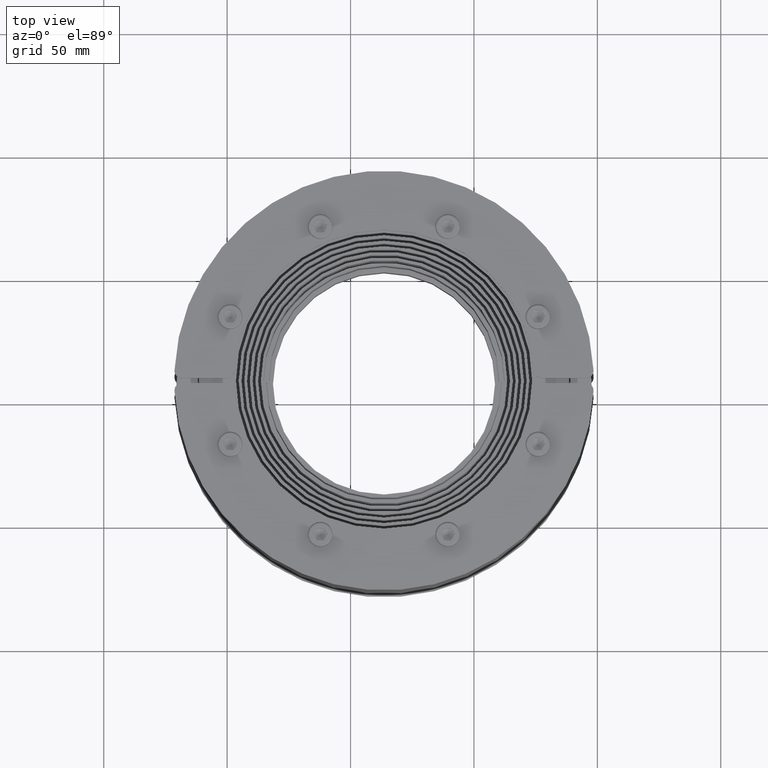
[diagram: clean part render]
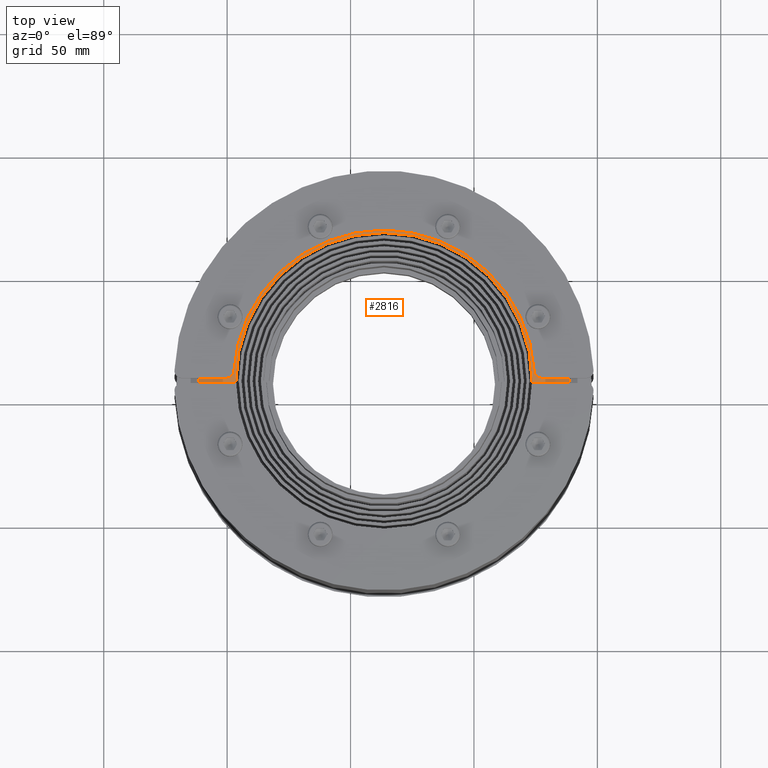
[diagram: same view with one face highlighted and labeled with its STEP entity id]
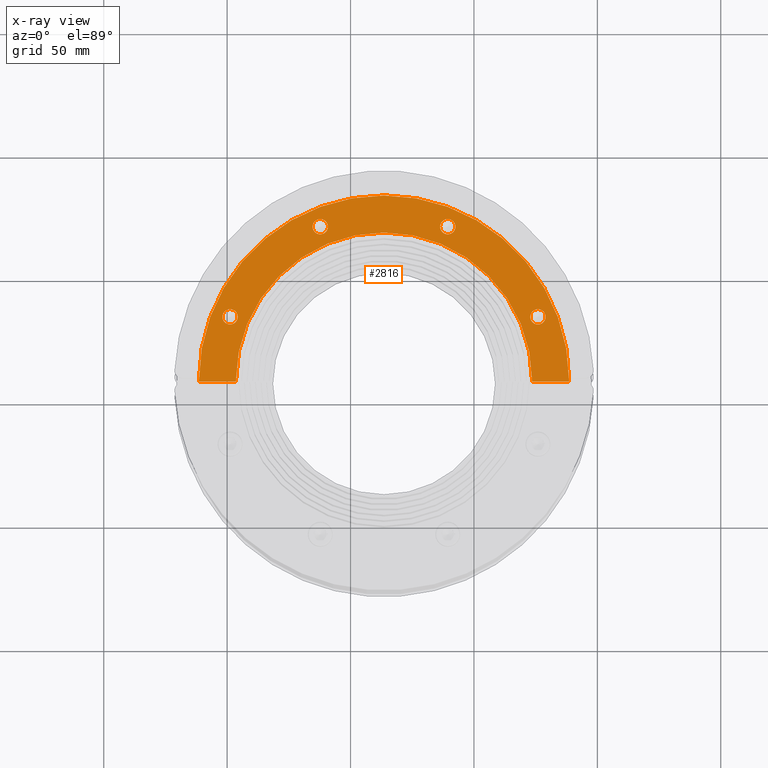
[diagram: x-ray of the same camera — body ghosted, the highlighted face saturated]
A machine part, top view. The second image highlights one B-rep face of the part: STEP entity #2816.
The next image is the same camera in x-ray: the body ghosted, the highlighted face saturated — about 0% of this face is hidden behind the body in this view.
In plain terms, the highlighted planar face has unit normal (-0, 0, 1).
Its self-contained STEP definition (entity closure, byte-faithful):
#2268=CARTESIAN_POINT('',(65.461868444512078,-11.418868315356633,-1.500000000000000));
#2269=VERTEX_POINT('',#2268);
#2285=CARTESIAN_POINT('',(59.261868444512082,-11.418868315356633,-1.500000000000000));
#2286=VERTEX_POINT('',#2285);
#2293=CARTESIAN_POINT('',(62.361868444512083,-11.418868315356633,-1.500000000000000));
#2294=DIRECTION('',(0.0,0.0,1.0));
#2295=DIRECTION('',(1.0,0.0,0.0));
#2296=AXIS2_PLACEMENT_3D('',#2293,#2294,#2295);
#2297=CIRCLE('',#2296,3.100000000000000);
#2298=EDGE_CURVE('',#2286,#2269,#2297,.T.);
#2310=CARTESIAN_POINT('',(28.931131684643645,25.111868444511686,-1.500000000000000));
#2311=VERTEX_POINT('',#2310);
#2327=CARTESIAN_POINT('',(22.731131684643650,25.111868444511686,-1.500000000000000));
#2328=VERTEX_POINT('',#2327);
#2335=CARTESIAN_POINT('',(25.831131684643651,25.111868444511686,-1.500000000000000));
#2336=DIRECTION('',(0.0,0.0,1.0));
#2337=DIRECTION('',(1.0,0.0,0.0));
#2338=AXIS2_PLACEMENT_3D('',#2335,#2336,#2337);
#2339=CIRCLE('',#2338,3.100000000000000);
#2340=EDGE_CURVE('',#2328,#2311,#2339,.T.);
#2352=CARTESIAN_POINT('',(-22.731131684643429,25.111868444511686,-1.500000000000000));
#2353=VERTEX_POINT('',#2352);
#2369=CARTESIAN_POINT('',(-28.931131684643425,25.111868444511686,-1.500000000000000));
#2370=VERTEX_POINT('',#2369);
#2377=CARTESIAN_POINT('',(-25.831131684643424,25.111868444511686,-1.500000000000000));
#2378=DIRECTION('',(0.0,0.0,1.0));
#2379=DIRECTION('',(1.0,0.0,0.0));
#2380=AXIS2_PLACEMENT_3D('',#2377,#2378,#2379);
#2381=CIRCLE('',#2380,3.100000000000000);
#2382=EDGE_CURVE('',#2370,#2353,#2381,.T.);
#2394=CARTESIAN_POINT('',(-59.261868444511805,-11.418868315356519,-1.500000000000000));
#2395=VERTEX_POINT('',#2394);
#2411=CARTESIAN_POINT('',(-65.461868444511794,-11.418868315356519,-1.500000000000000));
#2412=VERTEX_POINT('',#2411);
#2419=CARTESIAN_POINT('',(-62.361868444511799,-11.418868315356519,-1.500000000000000));
#2420=DIRECTION('',(0.0,0.0,1.0));
#2421=DIRECTION('',(1.0,0.0,0.0));
#2422=AXIS2_PLACEMENT_3D('',#2419,#2420,#2421);
#2423=CIRCLE('',#2422,3.100000000000000);
#2424=EDGE_CURVE('',#2412,#2395,#2423,.T.);
#2434=CARTESIAN_POINT('',(-75.0,-37.249999999999964,-1.500000000000000));
#2435=VERTEX_POINT('',#2434);
#2453=CARTESIAN_POINT('',(-74.998333314814403,-37.749999999999972,-1.500000000000000));
#2454=VERTEX_POINT('',#2453);
#2461=CARTESIAN_POINT('',(0.0,-37.249999999999972,-1.500000000000000));
#2462=DIRECTION('',(0.0,0.0,-1.0));
#2463=DIRECTION('',(1.0,0.0,0.0));
#2464=AXIS2_PLACEMENT_3D('',#2461,#2462,#2463);
#2465=CIRCLE('',#2464,75.0);
#2466=EDGE_CURVE('',#2454,#2435,#2465,.T.);
#2478=CARTESIAN_POINT('',(75.0,-37.249999999999979,-1.500000000000000));
#2479=VERTEX_POINT('',#2478);
#2494=CARTESIAN_POINT('',(0.0,-37.249999999999972,-1.500000000000000));
#2495=DIRECTION('',(0.0,0.0,-1.0));
#2496=DIRECTION('',(1.0,0.0,0.0));
#2497=AXIS2_PLACEMENT_3D('',#2494,#2495,#2496);
#2498=CIRCLE('',#2497,75.0);
#2499=EDGE_CURVE('',#2435,#2479,#2498,.T.);
#2509=CARTESIAN_POINT('',(-59.999999999999886,-37.249999999999964,-1.500000000000000));
#2510=VERTEX_POINT('',#2509);
#2519=CARTESIAN_POINT('',(-59.997916630496320,-37.749999999999972,-1.500000000000000));
#2520=VERTEX_POINT('',#2519);
#2521=CARTESIAN_POINT('',(0.0,-37.249999999999972,-1.500000000000000));
#2522=DIRECTION('',(0.0,0.0,1.0));
#2523=DIRECTION('',(1.0,0.0,0.0));
#2524=AXIS2_PLACEMENT_3D('',#2521,#2522,#2523);
#2525=CIRCLE('',#2524,59.999999999999886);
#2526=EDGE_CURVE('',#2510,#2520,#2525,.T.);
#2553=CARTESIAN_POINT('',(59.999999999999886,-37.249999999999979,-1.500000000000000));
#2554=VERTEX_POINT('',#2553);
#2570=CARTESIAN_POINT('',(59.997916630496320,-37.749999999999972,-1.500000000000000));
#2571=VERTEX_POINT('',#2570);
#2578=CARTESIAN_POINT('',(0.0,-37.249999999999972,-1.500000000000000));
#2579=DIRECTION('',(0.0,0.0,1.0));
#2580=DIRECTION('',(1.0,0.0,0.0));
#2581=AXIS2_PLACEMENT_3D('',#2578,#2579,#2580);
#2582=CIRCLE('',#2581,59.999999999999886);
#2583=EDGE_CURVE('',#2571,#2554,#2582,.T.);
#2593=CARTESIAN_POINT('',(74.998333314814403,-37.749999999999972,-1.500000000000000));
#2594=VERTEX_POINT('',#2593);
#2595=CARTESIAN_POINT('',(74.998333314814403,-37.749999999999972,-1.500000000000000));
#2596=DIRECTION('',(-1.0,0.0,0.0));
#2597=VECTOR('',#2596,15.000416684318083);
#2598=LINE('',#2595,#2597);
#2599=EDGE_CURVE('',#2594,#2571,#2598,.T.);
#2625=CARTESIAN_POINT('',(0.0,-37.249999999999972,-1.500000000000000));
#2626=DIRECTION('',(0.0,0.0,1.0));
#2627=DIRECTION('',(1.0,0.0,0.0));
#2628=AXIS2_PLACEMENT_3D('',#2625,#2626,#2627);
#2629=CIRCLE('',#2628,59.999999999999886);
#2630=EDGE_CURVE('',#2554,#2510,#2629,.T.);
#2648=CARTESIAN_POINT('',(-59.997916630496320,-37.749999999999972,-1.500000000000000));
#2649=DIRECTION('',(-1.0,0.0,0.0));
#2650=VECTOR('',#2649,15.000416684318083);
#2651=LINE('',#2648,#2650);
#2652=EDGE_CURVE('',#2520,#2454,#2651,.T.);
#2671=CARTESIAN_POINT('',(0.0,-37.249999999999972,-1.500000000000000));
#2672=DIRECTION('',(0.0,0.0,-1.0));
#2673=DIRECTION('',(1.0,0.0,0.0));
#2674=AXIS2_PLACEMENT_3D('',#2671,#2672,#2673);
#2675=CIRCLE('',#2674,75.0);
#2676=EDGE_CURVE('',#2479,#2594,#2675,.T.);
#2695=CARTESIAN_POINT('',(-62.361868444511799,-11.418868315356519,-1.500000000000000));
#2696=DIRECTION('',(0.0,0.0,1.0));
#2697=DIRECTION('',(1.0,0.0,0.0));
#2698=AXIS2_PLACEMENT_3D('',#2695,#2696,#2697);
#2699=CIRCLE('',#2698,3.100000000000000);
#2700=EDGE_CURVE('',#2395,#2412,#2699,.T.);
#2719=CARTESIAN_POINT('',(-25.831131684643424,25.111868444511686,-1.500000000000000));
#2720=DIRECTION('',(0.0,0.0,1.0));
#2721=DIRECTION('',(1.0,0.0,0.0));
#2722=AXIS2_PLACEMENT_3D('',#2719,#2720,#2721);
#2723=CIRCLE('',#2722,3.100000000000000);
#2724=EDGE_CURVE('',#2353,#2370,#2723,.T.);
#2743=CARTESIAN_POINT('',(25.831131684643651,25.111868444511686,-1.500000000000000));
#2744=DIRECTION('',(0.0,0.0,1.0));
#2745=DIRECTION('',(1.0,0.0,0.0));
#2746=AXIS2_PLACEMENT_3D('',#2743,#2744,#2745);
#2747=CIRCLE('',#2746,3.100000000000000);
#2748=EDGE_CURVE('',#2311,#2328,#2747,.T.);
#2767=CARTESIAN_POINT('',(62.361868444512083,-11.418868315356633,-1.500000000000000));
#2768=DIRECTION('',(0.0,0.0,1.0));
#2769=DIRECTION('',(1.0,0.0,0.0));
#2770=AXIS2_PLACEMENT_3D('',#2767,#2768,#2769);
#2771=CIRCLE('',#2770,3.100000000000000);
#2772=EDGE_CURVE('',#2269,#2286,#2771,.T.);
#2785=CARTESIAN_POINT('',(0.0,-0.859164829060035,-1.500000000000000));
#2786=DIRECTION('',(0.0,0.0,1.0));
#2787=DIRECTION('',(1.0,0.0,0.0));
#2788=AXIS2_PLACEMENT_3D('',#2785,#2786,#2787);
#2789=PLANE('',#2788);
#2790=ORIENTED_EDGE('',*,*,#2599,.F.);
#2791=ORIENTED_EDGE('',*,*,#2676,.F.);
#2792=ORIENTED_EDGE('',*,*,#2499,.F.);
#2793=ORIENTED_EDGE('',*,*,#2466,.F.);
#2794=ORIENTED_EDGE('',*,*,#2652,.F.);
#2795=ORIENTED_EDGE('',*,*,#2526,.F.);
#2796=ORIENTED_EDGE('',*,*,#2630,.F.);
#2797=ORIENTED_EDGE('',*,*,#2583,.F.);
#2798=EDGE_LOOP('',(#2790,#2791,#2792,#2793,#2794,#2795,#2796,#2797));
#2799=FACE_OUTER_BOUND('',#2798,.F.);
#2800=ORIENTED_EDGE('',*,*,#2772,.F.);
#2801=ORIENTED_EDGE('',*,*,#2298,.F.);
#2802=EDGE_LOOP('',(#2800,#2801));
#2803=FACE_BOUND('',#2802,.F.);
#2804=ORIENTED_EDGE('',*,*,#2748,.F.);
#2805=ORIENTED_EDGE('',*,*,#2340,.F.);
#2806=EDGE_LOOP('',(#2804,#2805));
#2807=FACE_BOUND('',#2806,.F.);
#2808=ORIENTED_EDGE('',*,*,#2724,.F.);
#2809=ORIENTED_EDGE('',*,*,#2382,.F.);
#2810=EDGE_LOOP('',(#2808,#2809));
#2811=FACE_BOUND('',#2810,.F.);
#2812=ORIENTED_EDGE('',*,*,#2700,.F.);
#2813=ORIENTED_EDGE('',*,*,#2424,.F.);
#2814=EDGE_LOOP('',(#2812,#2813));
#2815=FACE_BOUND('',#2814,.F.);
#2816=ADVANCED_FACE('',(#2799,#2803,#2807,#2811,#2815),#2789,.F.);